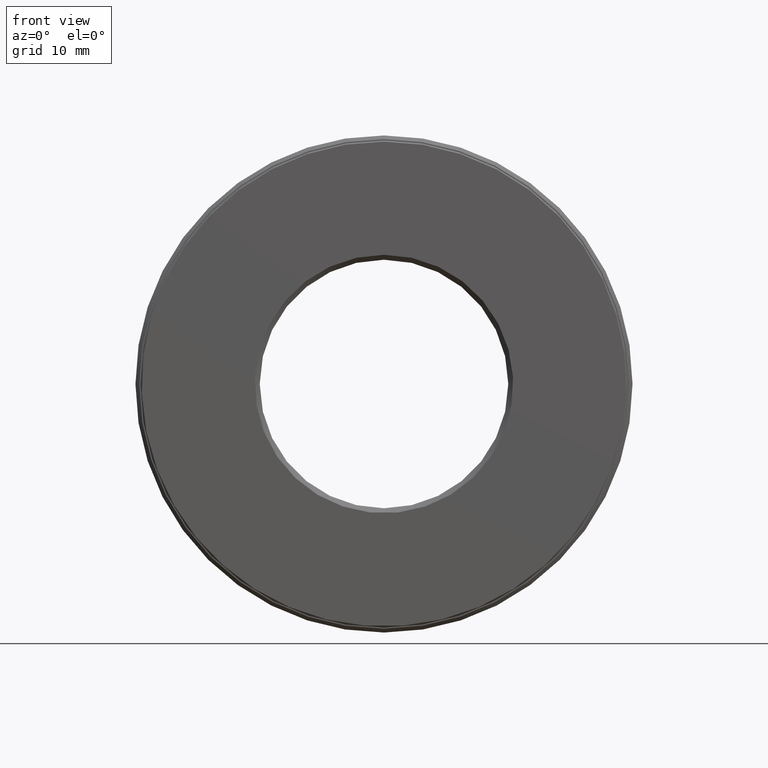
[diagram: clean part render]
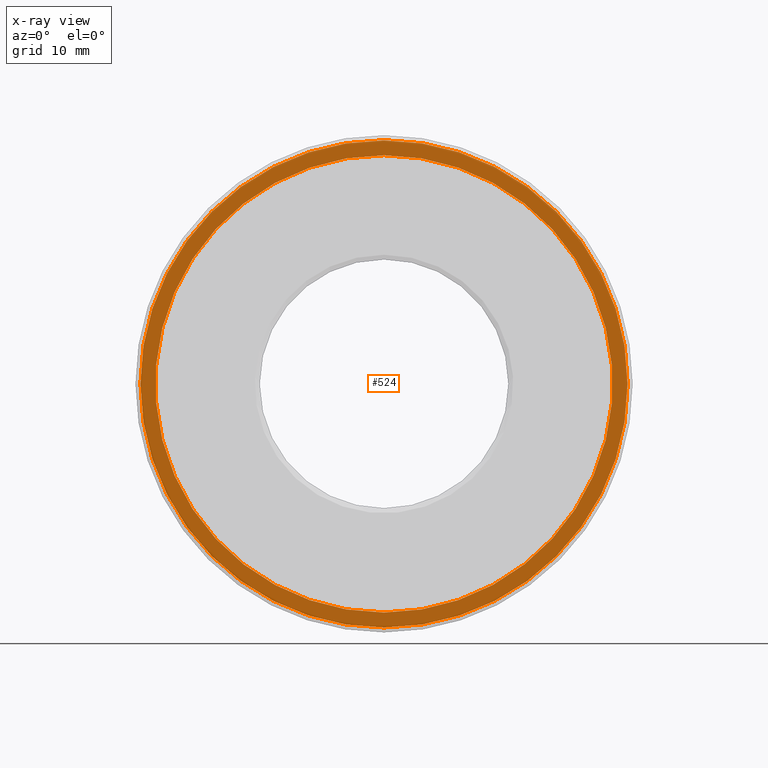
[diagram: x-ray — body ghosted, one internal face saturated and labeled with its STEP entity id]
A machine part, front view, then the same camera in x-ray: the body is ghosted and one INTERNAL B-rep face — a face not visible from any outside direction — is saturated and labeled: STEP entity #524.
In plain terms, the highlighted planar face has unit normal (-0, 1, 0).
Its self-contained STEP definition (entity closure, byte-faithful):
#21 = VERTEX_POINT ( 'NONE', #174 ) ;
#24 = CARTESIAN_POINT ( 'NONE',  ( 0.0000000000000000000, 0.7774999999999999700, 0.0000000000000000000 ) ) ;
#40 = EDGE_CURVE ( 'NONE', #171, #171, #191, .T. ) ;
#54 = AXIS2_PLACEMENT_3D ( 'NONE', #24, #122, #493 ) ;
#101 = CARTESIAN_POINT ( 'NONE',  ( 0.0000000000000000000, 0.7774999999999999700, 0.0000000000000000000 ) ) ;
#122 = DIRECTION ( 'NONE',  ( -0.0000000000000000000, 1.000000000000000000, -0.0000000000000000000 ) ) ;
#135 = AXIS2_PLACEMENT_3D ( 'NONE', #315, #263, #586 ) ;
#160 = ORIENTED_EDGE ( 'NONE', *, *, #547, .F. ) ;
#171 = VERTEX_POINT ( 'NONE', #551 ) ;
#173 = FACE_OUTER_BOUND ( 'NONE', #490, .T. ) ;
#174 = CARTESIAN_POINT ( 'NONE',  ( 0.0000000000000000000, 0.7774999999999999700, 0.9799999999999999800 ) ) ;
#191 = CIRCLE ( 'NONE', #598, 0.9200000000000000400 ) ;
#196 = DIRECTION ( 'NONE',  ( 0.0000000000000000000, 0.0000000000000000000, 1.000000000000000000 ) ) ;
#261 = PLANE ( 'NONE',  #135 ) ;
#263 = DIRECTION ( 'NONE',  ( -0.0000000000000000000, 1.000000000000000000, 0.0000000000000000000 ) ) ;
#285 = ORIENTED_EDGE ( 'NONE', *, *, #40, .T. ) ;
#304 = CIRCLE ( 'NONE', #54, 0.9799999999999999800 ) ;
#315 = CARTESIAN_POINT ( 'NONE',  ( 0.0000000000000000000, 0.7774999999999999700, 0.0000000000000000000 ) ) ;
#341 = DIRECTION ( 'NONE',  ( -0.0000000000000000000, 1.000000000000000000, -0.0000000000000000000 ) ) ;
#398 = FACE_BOUND ( 'NONE', #438, .T. ) ;
#438 = EDGE_LOOP ( 'NONE', ( #285 ) ) ;
#490 = EDGE_LOOP ( 'NONE', ( #160 ) ) ;
#493 = DIRECTION ( 'NONE',  ( 0.0000000000000000000, 0.0000000000000000000, 1.000000000000000000 ) ) ;
#524 = ADVANCED_FACE ( 'NONE', ( #173, #398 ), #261, .F. ) ;
#547 = EDGE_CURVE ( 'NONE', #21, #21, #304, .T. ) ;
#551 = CARTESIAN_POINT ( 'NONE',  ( 0.0000000000000000000, 0.7774999999999999700, 0.9200000000000000400 ) ) ;
#586 = DIRECTION ( 'NONE',  ( 0.0000000000000000000, 0.0000000000000000000, 1.000000000000000000 ) ) ;
#598 = AXIS2_PLACEMENT_3D ( 'NONE', #101, #341, #196 ) ;